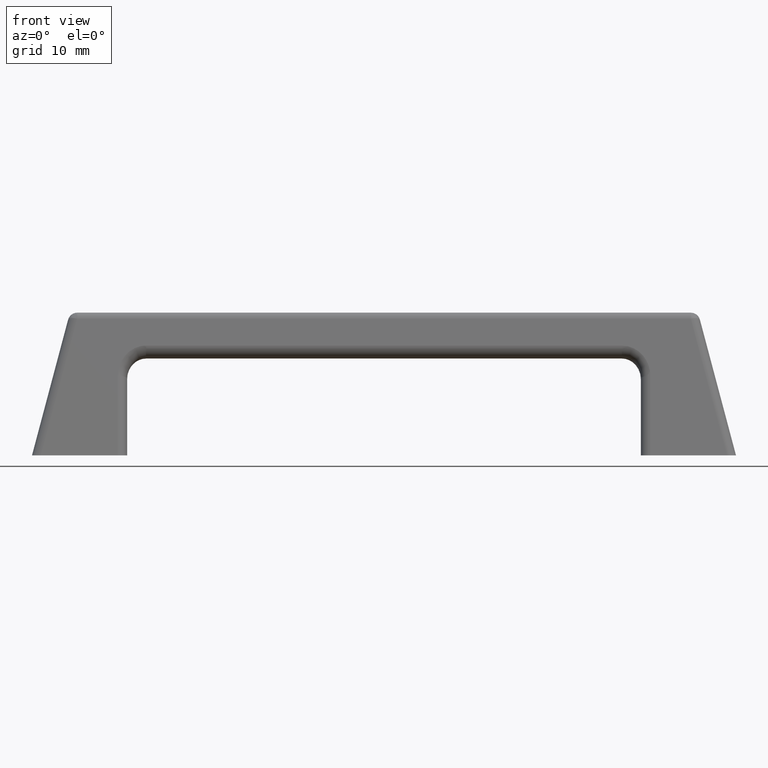
[diagram: clean part render]
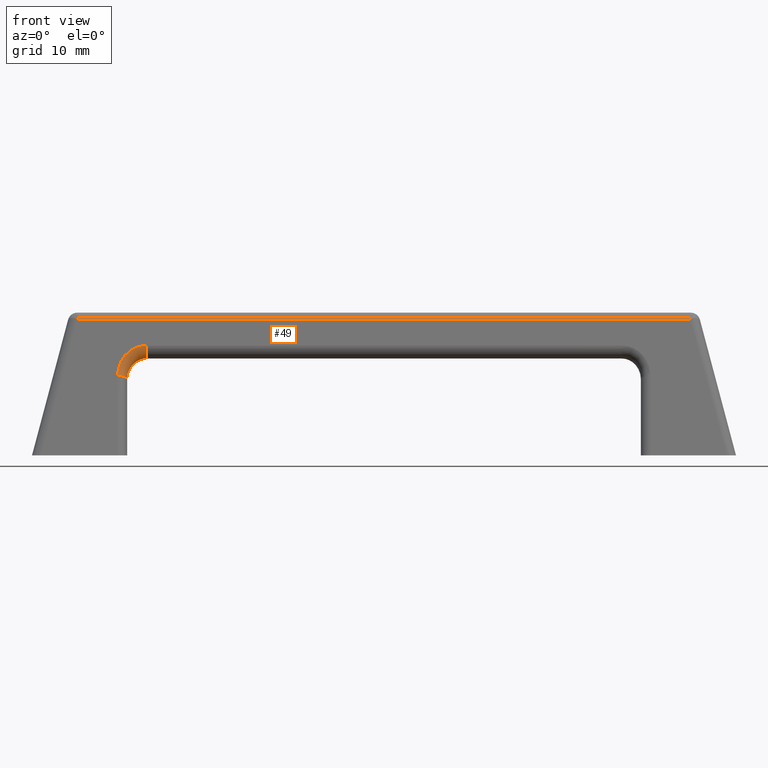
[diagram: same view with one face highlighted and labeled with its STEP entity id]
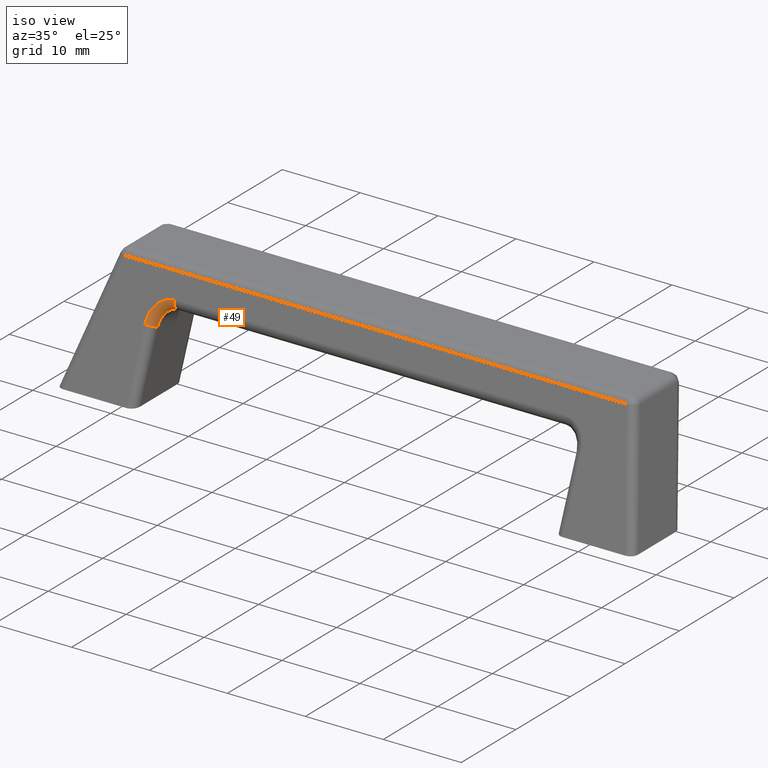
[diagram: same view with one face highlighted and labeled with its STEP entity id]
A machine part, front view. The second image highlights one B-rep face of the part: STEP entity #49.
A second angle (iso view) of the same face is appended — the face is thin or edge-on in the first view.
In plain terms, the highlighted face is a freeform B-spline surface patch.
Its self-contained STEP definition (entity closure, byte-faithful):
#49=ADVANCED_FACE('',(#171),#170,.T.);
#170=( BOUNDED_SURFACE() B_SPLINE_SURFACE( 3,3,((#794,#795,#796,#797,#798,#799,#800,#801,#802,#803,#804,#805,#806,#807,#808,#809,#810,#811,#812),(#813,#814,#815,#816,#817,#818,#819,#820,#821,#822,#823,#824,#825,#826,#827,#828,#829,#830,#831),(#832,#833,#834,#835,#836,#837,#838,#839,#840,#841,#842,#843,#844,#845,#846,#847,#848,#849,#850),(#851,#852,#853,#854,#855,#856,#857,#858,#859,#860,#861,#862,#863,#864,#865,#866,#867,#868,#869),(#870,#871,#872,#873,#874,#875,#876,#877,#878,#879,#880,#881,#882,#883,#884,#885,#886,#887,#888),(#889,#890,#891,#892,#893,#894,#895,#896,#897,#898,#899,#900,#901,#902,#903,#904,#905,#906,#907),(#908,#909,#910,#911,#912,#913,#914,#915,#916,#917,#918,#919,#920,#921,#922,#923,#924,#925,#926),(#927,#928,#929,#930,#931,#932,#933,#934,#935,#936,#937,#938,#939,#940,#941,#942,#943,#944,#945),(#946,#947,#948,#949,#950,#951,#952,#953,#954,#955,#956,#957,#958,#959,#960,#961,#962,#963,#964),(#965,#966,#967,#968,#969,#970,#971,#972,#973,#974,#975,#976,#977,#978,#979,#980,#981,#982,#983),(#984,#985,#986,#987,#988,#989,#990,#991,#992,#993,#994,#995,#996,#997,#998,#999,#1000,#1001,#1002),(#1003,#1004,#1005,#1006,#1007,#1008,#1009,#1010,#1011,#1012,#1013,#1014,#1015,#1016,#1017,#1018,#1019,#1020,#1021),(#1022,#1023,#1024,#1025,#1026,#1027,#1028,#1029,#1030,#1031,#1032,#1033,#1034,#1035,#1036,#1037,#1038,#1039,#1040)), .UNSPECIFIED.,.F.,.F.,.F.) B_SPLINE_SURFACE_WITH_KNOTS((4,3,3,3,4),(4,3,3,3,3,3,4),(0.00000000000E+00,1.33294587246E+00,2.66589174491E+00,3.99883761737E+00,5.33178348983E+00),(0.00000000000E+00,5.78926830440E-01,1.00956474288E+00,1.32989712665E+00,1.80070847255E+00,2.26015726268E+00,2.28218643309E+00), .UNSPECIFIED. ) GEOMETRIC_REPRESENTATION_ITEM() RATIONAL_B_SPLINE_SURFACE(((1.00000000000E+00,1.00000000000E+00,1.00000000000E+00,1.00000000000E+00,1.00000000000E+00,1.00000000000E+00,1.00000000000E+00,1.00000000000E+00,1.00000000000E+00,1.00000000000E+00,1.00000000000E+00,1.00000000000E+00,1.00000000000E+00,1.00000000000E+00,1.00000000000E+00,1.00000000000E+00,1.00000000000E+00,1.00000000000E+00,1.00000000000E+00),(1.00000000000E+00,1.00000000000E+00,1.00000000000E+00,1.00000000000E+00,1.00000000000E+00,1.00000000000E+00,1.00000000000E+00,1.00000000000E+00,1.00000000000E+00,1.00000000000E+00,1.00000000000E+00,1.00000000000E+00,1.00000000000E+00,1.00000000000E+00,1.00000000000E+00,1.00000000000E+00,1.00000000000E+00,1.00000000000E+00,1.00000000000E+00),(1.00000000000E+00,1.00000000000E+00,1.00000000000E+00,1.00000000000E+00,1.00000000000E+00,1.00000000000E+00,1.00000000000E+00,1.00000000000E+00,1.00000000000E+00,1.00000000000E+00,1.00000000000E+00,1.00000000000E+00,1.00000000000E+00,1.00000000000E+00,1.00000000000E+00,1.00000000000E+00,1.00000000000E+00,1.00000000000E+00,1.00000000000E+00),(1.00000000000E+00,1.00000000000E+00,1.00000000000E+00,1.00000000000E+00,1.00000000000E+00,1.00000000000E+00,1.00000000000E+00,1.00000000000E+00,1.00000000000E+00,1.00000000000E+00,1.00000000000E+00,1.00000000000E+00,1.00000000000E+00,1.00000000000E+00,1.00000000000E+00,1.00000000000E+00,1.00000000000E+00,1.00000000000E+00,1.00000000000E+00),(1.00000000000E+00,1.00000000000E+00,1.00000000000E+00,1.00000000000E+00,1.00000000000E+00,1.00000000000E+00,1.00000000000E+00,1.00000000000E+00,1.00000000000E+00,1.00000000000E+00,1.00000000000E+00,1.00000000000E+00,1.00000000000E+00,1.00000000000E+00,1.00000000000E+00,1.00000000000E+00,1.00000000000E+00,1.00000000000E+00,1.00000000000E+00),(1.00000000000E+00,1.00000000000E+00,1.00000000000E+00,1.00000000000E+00,1.00000000000E+00,1.00000000000E+00,1.00000000000E+00,1.00000000000E+00,1.00000000000E+00,1.00000000000E+00,1.00000000000E+00,1.00000000000E+00,1.00000000000E+00,1.00000000000E+00,1.00000000000E+00,1.00000000000E+00,1.00000000000E+00,1.00000000000E+00,1.00000000000E+00),(1.00000000000E+00,1.00000000000E+00,1.00000000000E+00,1.00000000000E+00,1.00000000000E+00,1.00000000000E+00,1.00000000000E+00,1.00000000000E+00,1.00000000000E+00,1.00000000000E+00,1.00000000000E+00,1.00000000000E+00,1.00000000000E+00,1.00000000000E+00,1.00000000000E+00,1.00000000000E+00,1.00000000000E+00,1.00000000000E+00,1.00000000000E+00),(1.00000000000E+00,1.00000000000E+00,1.00000000000E+00,1.00000000000E+00,1.00000000000E+00,1.00000000000E+00,1.00000000000E+00,1.00000000000E+00,1.00000000000E+00,1.00000000000E+00,1.00000000000E+00,1.00000000000E+00,1.00000000000E+00,1.00000000000E+00,1.00000000000E+00,1.00000000000E+00,1.00000000000E+00,1.00000000000E+00,1.00000000000E+00),(1.00000000000E+00,1.00000000000E+00,1.00000000000E+00,1.00000000000E+00,1.00000000000E+00,1.00000000000E+00,1.00000000000E+00,1.00000000000E+00,1.00000000000E+00,1.00000000000E+00,1.00000000000E+00,1.00000000000E+00,1.00000000000E+00,1.00000000000E+00,1.00000000000E+00,1.00000000000E+00,1.00000000000E+00,1.00000000000E+00,1.00000000000E+00),(1.00000000000E+00,1.00000000000E+00,1.00000000000E+00,1.00000000000E+00,1.00000000000E+00,1.00000000000E+00,1.00000000000E+00,1.00000000000E+00,1.00000000000E+00,1.00000000000E+00,1.00000000000E+00,1.00000000000E+00,1.00000000000E+00,1.00000000000E+00,1.00000000000E+00,1.00000000000E+00,1.00000000000E+00,1.00000000000E+00,1.00000000000E+00),(1.00000000000E+00,1.00000000000E+00,1.00000000000E+00,1.00000000000E+00,1.00000000000E+00,1.00000000000E+00,1.00000000000E+00,1.00000000000E+00,1.00000000000E+00,1.00000000000E+00,1.00000000000E+00,1.00000000000E+00,1.00000000000E+00,1.00000000000E+00,1.00000000000E+00,1.00000000000E+00,1.00000000000E+00,1.00000000000E+00,1.00000000000E+00),(1.00000000000E+00,1.00000000000E+00,1.00000000000E+00,1.00000000000E+00,1.00000000000E+00,1.00000000000E+00,1.00000000000E+00,1.00000000000E+00,1.00000000000E+00,1.00000000000E+00,1.00000000000E+00,1.00000000000E+00,1.00000000000E+00,1.00000000000E+00,1.00000000000E+00,1.00000000000E+00,1.00000000000E+00,1.00000000000E+00,1.00000000000E+00),(1.00000000000E+00,1.00000000000E+00,1.00000000000E+00,1.00000000000E+00,1.00000000000E+00,1.00000000000E+00,1.00000000000E+00,1.00000000000E+00,1.00000000000E+00,1.00000000000E+00,1.00000000000E+00,1.00000000000E+00,1.00000000000E+00,1.00000000000E+00,1.00000000000E+00,1.00000000000E+00,1.00000000000E+00,1.00000000000E+00,1.00000000000E+00))) REPRESENTATION_ITEM('') SURFACE() );
#171=FACE_OUTER_BOUND('',#1041,.T.);
#794=CARTESIAN_POINT('',(-2.70000000000E+01,4.28439923338E+00,8.01899952088E+00));
#795=CARTESIAN_POINT('',(-2.70000000000E+01,4.17228675956E+00,8.06384138988E+00));
#796=CARTESIAN_POINT('',(-2.70225898098E+01,4.05108691452E+00,8.11231795444E+00));
#797=CARTESIAN_POINT('',(-2.70738529094E+01,3.93420926391E+00,8.15906576153E+00));
#798=CARTESIAN_POINT('',(-2.71119852484E+01,3.84726917956E+00,8.19383937540E+00));
#799=CARTESIAN_POINT('',(-2.71658733164E+01,3.76307065442E+00,8.22751644188E+00));
#800=CARTESIAN_POINT('',(-2.72332994766E+01,3.68830691580E+00,8.25741985637E+00));
#801=CARTESIAN_POINT('',(-2.72834547974E+01,3.63269349691E+00,8.27966367599E+00));
#802=CARTESIAN_POINT('',(-2.73409763429E+01,3.58233293386E+00,8.29980649949E+00));
#803=CARTESIAN_POINT('',(-2.74034639000E+01,3.53920946004E+00,8.31705468872E+00));
#804=CARTESIAN_POINT('',(-2.74953055381E+01,3.47582835411E+00,8.34240536696E+00));
#805=CARTESIAN_POINT('',(-2.75977561877E+01,3.42839283795E+00,8.36137825311E+00));
#806=CARTESIAN_POINT('',(-2.77012937465E+01,3.39830354653E+00,8.37341313218E+00));
#807=CARTESIAN_POINT('',(-2.78023325311E+01,3.36894042973E+00,8.38515756161E+00));
#808=CARTESIAN_POINT('',(-2.79041720502E+01,3.35591363127E+00,8.39036791840E+00));
#809=CARTESIAN_POINT('',(-2.80000000000E+01,3.35591363127E+00,8.39036791840E+00));
#810=CARTESIAN_POINT('',(-2.80045946584E+01,3.35591363127E+00,8.39036791840E+00));
#811=CARTESIAN_POINT('',(-2.80091893168E+01,3.35591363127E+00,8.39036791840E+00));
#812=CARTESIAN_POINT('',(-2.80137839752E+01,3.35591363127E+00,8.39036791840E+00));
#813=CARTESIAN_POINT('',(-2.70000000000E+01,4.46325404960E+00,8.30135123168E+00));
#814=CARTESIAN_POINT('',(-2.69928307210E+01,4.34726595673E+00,8.34646316312E+00));
#815=CARTESIAN_POINT('',(-2.70090523915E+01,4.22092377466E+00,8.39866796105E+00));
#816=CARTESIAN_POINT('',(-2.70565290891E+01,4.09905831084E+00,8.45300961498E+00));
#817=CARTESIAN_POINT('',(-2.70918448922E+01,4.00840801415E+00,8.49343195365E+00));
#818=CARTESIAN_POINT('',(-2.71443637855E+01,3.92065424426E+00,8.53485803060E+00));
#819=CARTESIAN_POINT('',(-2.72119483805E+01,3.84336333501E+00,8.57403800894E+00));
#820=CARTESIAN_POINT('',(-2.72622215538E+01,3.78587006633E+00,8.60318225170E+00));
#821=CARTESIAN_POINT('',(-2.73206852874E+01,3.73420657538E+00,8.63105100517E+00));
#822=CARTESIAN_POINT('',(-2.73846900151E+01,3.69057182738E+00,8.65646277071E+00));
#823=CARTESIAN_POINT('',(-2.74787615282E+01,3.62643927171E+00,8.69381193720E+00));
#824=CARTESIAN_POINT('',(-2.75846583524E+01,3.58001319687E+00,8.72569593883E+00));
#825=CARTESIAN_POINT('',(-2.76916951028E+01,3.55246729420E+00,8.75037345747E+00));
#826=CARTESIAN_POINT('',(-2.77961486294E+01,3.52558618404E+00,8.77445540914E+00));
#827=CARTESIAN_POINT('',(-2.79014123498E+01,3.51644928943E+00,8.79173499276E+00));
#828=CARTESIAN_POINT('',(-2.80000000000E+01,3.52091828882E+00,8.80290826873E+00));
#829=CARTESIAN_POINT('',(-2.80047269776E+01,3.52113256373E+00,8.80344399328E+00));
#830=CARTESIAN_POINT('',(-2.80094539552E+01,3.52134683864E+00,8.80397971784E+00));
#831=CARTESIAN_POINT('',(-2.80141809328E+01,3.52156111356E+00,8.80451544240E+00));
#832=CARTESIAN_POINT('',(-2.69479453518E+01,4.64197403052E+00,8.58349008278E+00));
#833=CARTESIAN_POINT('',(-2.69330725471E+01,4.52247818775E+00,8.62736622441E+00));
#834=CARTESIAN_POINT('',(-2.69415761633E+01,4.39110154559E+00,8.68203168062E+00));
#835=CARTESIAN_POINT('',(-2.69833844647E+01,4.26414548388E+00,8.74339705443E+00));
#836=CARTESIAN_POINT('',(-2.70144838000E+01,4.16970851792E+00,8.78904402583E+00));
#837=CARTESIAN_POINT('',(-2.70639607644E+01,4.07822283628E+00,8.83817888865E+00));
#838=CARTESIAN_POINT('',(-2.71299141802E+01,3.99825993105E+00,8.88690354843E+00));
#839=CARTESIAN_POINT('',(-2.71789739919E+01,3.93877908344E+00,8.92314765506E+00));
#840=CARTESIAN_POINT('',(-2.72369827900E+01,3.88572583141E+00,8.95910382129E+00));
#841=CARTESIAN_POINT('',(-2.73010685407E+01,3.84154382980E+00,8.99309575555E+00));
#842=CARTESIAN_POINT('',(-2.73952591381E+01,3.77660694331E+00,9.04305570068E+00));
#843=CARTESIAN_POINT('',(-2.75024011753E+01,3.73125573399E+00,9.08856642824E+00));
#844=CARTESIAN_POINT('',(-2.76106811810E+01,3.70634562728E+00,9.12637184608E+00));
#845=CARTESIAN_POINT('',(-2.77163479582E+01,3.68203670081E+00,9.16326486839E+00));
#846=CARTESIAN_POINT('',(-2.78227790030E+01,3.67688912901E+00,9.19286250400E+00));
#847=CARTESIAN_POINT('',(-2.79219180278E+01,3.68579855243E+00,9.21513761256E+00));
#848=CARTESIAN_POINT('',(-2.79266714421E+01,3.68622573215E+00,9.21620563618E+00));
#849=CARTESIAN_POINT('',(-2.79314248565E+01,3.68665291188E+00,9.21727365981E+00));
#850=CARTESIAN_POINT('',(-2.79361782708E+01,3.68708009160E+00,9.21834168343E+00));
#851=CARTESIAN_POINT('',(-2.68477590650E+01,4.80718454676E+00,8.84430202449E+00));
#852=CARTESIAN_POINT('',(-2.68263616822E+01,4.68407224388E+00,8.88383567251E+00));
#853=CARTESIAN_POINT('',(-2.68274198425E+01,4.54747603491E+00,8.93770594955E+00));
#854=CARTESIAN_POINT('',(-2.68626659143E+01,4.41521532582E+00,9.00367514294E+00));
#855=CARTESIAN_POINT('',(-2.68888838990E+01,4.31683246867E+00,9.05274669090E+00));
#856=CARTESIAN_POINT('',(-2.69340274773E+01,4.22145449774E+00,9.10827925240E+00));
#857=CARTESIAN_POINT('',(-2.69965829920E+01,4.13877487423E+00,9.16586948188E+00));
#858=CARTESIAN_POINT('',(-2.70431152562E+01,4.07727318075E+00,9.20870829138E+00));
#859=CARTESIAN_POINT('',(-2.70990976793E+01,4.02286423825E+00,9.25258529885E+00));
#860=CARTESIAN_POINT('',(-2.71615381353E+01,3.97824933258E+00,9.29523627129E+00));
#861=CARTESIAN_POINT('',(-2.72533105461E+01,3.91267618154E+00,9.35792291416E+00));
#862=CARTESIAN_POINT('',(-2.73588288864E+01,3.86874637035E+00,9.41768822239E+00));
#863=CARTESIAN_POINT('',(-2.74654993710E+01,3.84683646917E+00,9.46930313806E+00));
#864=CARTESIAN_POINT('',(-2.75695954713E+01,3.82545534129E+00,9.51967237993E+00));
#865=CARTESIAN_POINT('',(-2.76744333020E+01,3.82465008597E+00,9.56229060290E+00));
#866=CARTESIAN_POINT('',(-2.77716385975E+01,3.83821549725E+00,9.59620649113E+00));
#867=CARTESIAN_POINT('',(-2.77762992955E+01,3.83886591741E+00,9.59783265469E+00));
#868=CARTESIAN_POINT('',(-2.77809599934E+01,3.83951633758E+00,9.59945881825E+00));
#869=CARTESIAN_POINT('',(-2.77856206913E+01,3.84016675774E+00,9.60108498181E+00));
#870=CARTESIAN_POINT('',(-2.67475727782E+01,4.97239506300E+00,9.10511396619E+00));
#871=CARTESIAN_POINT('',(-2.67196508174E+01,4.84566630001E+00,9.14030512061E+00));
#872=CARTESIAN_POINT('',(-2.67132635216E+01,4.70385052423E+00,9.19338021848E+00));
#873=CARTESIAN_POINT('',(-2.67419473638E+01,4.56628516776E+00,9.26395323145E+00));
#874=CARTESIAN_POINT('',(-2.67632839979E+01,4.46395641943E+00,9.31644935597E+00));
#875=CARTESIAN_POINT('',(-2.68040941902E+01,4.36468615919E+00,9.37837961614E+00));
#876=CARTESIAN_POINT('',(-2.68632518037E+01,4.27928981740E+00,9.44483541533E+00));
#877=CARTESIAN_POINT('',(-2.69072565205E+01,4.21576727807E+00,9.49426892770E+00));
#878=CARTESIAN_POINT('',(-2.69612125687E+01,4.16000264510E+00,9.54606677640E+00));
#879=CARTESIAN_POINT('',(-2.70220077298E+01,4.11495483537E+00,9.59737678703E+00));
#880=CARTESIAN_POINT('',(-2.71113619541E+01,4.04874541977E+00,9.67279012763E+00));
#881=CARTESIAN_POINT('',(-2.72152565975E+01,4.00623700671E+00,9.74681001654E+00));
#882=CARTESIAN_POINT('',(-2.73203175610E+01,3.98732731105E+00,9.81223443004E+00));
#883=CARTESIAN_POINT('',(-2.74228429844E+01,3.96887398178E+00,9.87607989147E+00));
#884=CARTESIAN_POINT('',(-2.75260876010E+01,3.97241104293E+00,9.93171870180E+00));
#885=CARTESIAN_POINT('',(-2.76213591673E+01,3.99063244207E+00,9.97727536970E+00));
#886=CARTESIAN_POINT('',(-2.76259271488E+01,3.99150610267E+00,9.97945967320E+00));
#887=CARTESIAN_POINT('',(-2.76304951303E+01,3.99237976328E+00,9.98164397670E+00));
#888=CARTESIAN_POINT('',(-2.76350631118E+01,3.99325342388E+00,9.98382828020E+00));
#889=CARTESIAN_POINT('',(-2.65993336818E+01,5.12393388057E+00,9.34434288547E+00));
#890=CARTESIAN_POINT('',(-2.65666143759E+01,4.99375648758E+00,9.37277379352E+00));
#891=CARTESIAN_POINT('',(-2.65535688129E+01,4.84678763501E+00,9.42239452828E+00));
#892=CARTESIAN_POINT('',(-2.65751471683E+01,4.70387625729E+00,9.49555364356E+00));
#893=CARTESIAN_POINT('',(-2.65911983468E+01,4.59757084160E+00,9.54997345453E+00));
#894=CARTESIAN_POINT('',(-2.66265521156E+01,4.49433204278E+00,9.61718260600E+00));
#895=CARTESIAN_POINT('',(-2.66805972858E+01,4.40620392340E+00,9.69188889812E+00));
#896=CARTESIAN_POINT('',(-2.67207990833E+01,4.34064933624E+00,9.74745958511E+00));
#897=CARTESIAN_POINT('',(-2.67711327013E+01,4.28355542326E+00,9.80698857591E+00));
#898=CARTESIAN_POINT('',(-2.68284732845E+01,4.23815276120E+00,9.86694245336E+00));
#899=CARTESIAN_POINT('',(-2.69127501122E+01,4.17142179827E+00,9.95506019345E+00));
#900=CARTESIAN_POINT('',(-2.70119035521E+01,4.13056553983E+00,1.00436686706E+01));
#901=CARTESIAN_POINT('',(-2.71121796605E+01,4.11485866888E+00,1.01231754645E+01));
#902=CARTESIAN_POINT('',(-2.72100357064E+01,4.09953086738E+00,1.02007634424E+01));
#903=CARTESIAN_POINT('',(-2.73085442307E+01,4.10756216052E+00,1.02696200085E+01));
#904=CARTESIAN_POINT('',(-2.73990005227E+01,4.13043639718E+00,1.03268095796E+01));
#905=CARTESIAN_POINT('',(-2.74033376264E+01,4.13153314717E+00,1.03295516454E+01));
#906=CARTESIAN_POINT('',(-2.74076747302E+01,4.13262989716E+00,1.03322937112E+01));
#907=CARTESIAN_POINT('',(-2.74120118339E+01,4.13372664715E+00,1.03350357770E+01));
#908=CARTESIAN_POINT('',(-2.64142135624E+01,5.25038053524E+00,9.54395970331E+00));
#909=CARTESIAN_POINT('',(-2.63803792714E+01,5.11684771539E+00,9.56407254046E+00));
#910=CARTESIAN_POINT('',(-2.63637958359E+01,4.96494820100E+00,9.60799214954E+00));
#911=CARTESIAN_POINT('',(-2.63795336118E+01,4.81695771191E+00,9.68141762254E+00));
#912=CARTESIAN_POINT('',(-2.63912402431E+01,4.70687417125E+00,9.73603556517E+00));
#913=CARTESIAN_POINT('',(-2.64210279874E+01,4.59989073953E+00,9.80679980887E+00));
#914=CARTESIAN_POINT('',(-2.64687087886E+01,4.50926067636E+00,9.88830790096E+00));
#915=CARTESIAN_POINT('',(-2.65041764152E+01,4.44184500454E+00,9.94893814434E+00));
#916=CARTESIAN_POINT('',(-2.65493395853E+01,4.38359712324E+00,1.00152692775E+01));
#917=CARTESIAN_POINT('',(-2.66012410342E+01,4.33799748314E+00,1.00830894042E+01));
#918=CARTESIAN_POINT('',(-2.66775236464E+01,4.27097700998E+00,1.01827686335E+01));
#919=CARTESIAN_POINT('',(-2.67680962348E+01,4.23196190364E+00,1.02851398691E+01));
#920=CARTESIAN_POINT('',(-2.68596926138E+01,4.21950503961E+00,1.03780304925E+01));
#921=CARTESIAN_POINT('',(-2.69490784068E+01,4.20734880941E+00,1.04686792945E+01));
#922=CARTESIAN_POINT('',(-2.70390282037E+01,4.21977938358E+00,1.05501825890E+01));
#923=CARTESIAN_POINT('',(-2.71213203436E+01,4.24709127621E+00,1.06184670721E+01));
#924=CARTESIAN_POINT('',(-2.71252660011E+01,4.24840079830E+00,1.06217411051E+01));
#925=CARTESIAN_POINT('',(-2.71292116586E+01,4.24971032038E+00,1.06250151382E+01));
#926=CARTESIAN_POINT('',(-2.71331573161E+01,4.25101984246E+00,1.06282891712E+01));
#927=CARTESIAN_POINT('',(-2.62290934430E+01,5.37682718991E+00,9.74357652116E+00));
#928=CARTESIAN_POINT('',(-2.61941441668E+01,5.23993894321E+00,9.75537128741E+00));
#929=CARTESIAN_POINT('',(-2.61740228589E+01,5.08310876698E+00,9.79358977080E+00));
#930=CARTESIAN_POINT('',(-2.61839200553E+01,4.93003916653E+00,9.86728160151E+00));
#931=CARTESIAN_POINT('',(-2.61912821394E+01,4.81617750089E+00,9.92209767580E+00));
#932=CARTESIAN_POINT('',(-2.62155038592E+01,4.70544943628E+00,9.99641701174E+00));
#933=CARTESIAN_POINT('',(-2.62568202913E+01,4.61231742933E+00,1.00847269038E+01));
#934=CARTESIAN_POINT('',(-2.62875537470E+01,4.54304067284E+00,1.01504167036E+01));
#935=CARTESIAN_POINT('',(-2.63275464693E+01,4.48363882322E+00,1.02235499792E+01));
#936=CARTESIAN_POINT('',(-2.63740087839E+01,4.43784220507E+00,1.02992363551E+01));
#937=CARTESIAN_POINT('',(-2.64422971807E+01,4.37053222170E+00,1.04104770735E+01));
#938=CARTESIAN_POINT('',(-2.65242889175E+01,4.33335826744E+00,1.05266110676E+01));
#939=CARTESIAN_POINT('',(-2.66072055671E+01,4.32415141035E+00,1.06328855204E+01));
#940=CARTESIAN_POINT('',(-2.66881211071E+01,4.31516675143E+00,1.07365951467E+01));
#941=CARTESIAN_POINT('',(-2.67695121767E+01,4.33199660665E+00,1.08307451695E+01));
#942=CARTESIAN_POINT('',(-2.68436401644E+01,4.36374615525E+00,1.09101245646E+01));
#943=CARTESIAN_POINT('',(-2.68471943757E+01,4.36526844943E+00,1.09139305648E+01));
#944=CARTESIAN_POINT('',(-2.68507485870E+01,4.36679074360E+00,1.09177365651E+01));
#945=CARTESIAN_POINT('',(-2.68543027983E+01,4.36831303777E+00,1.09215425654E+01));
#946=CARTESIAN_POINT('',(-2.60072379564E+01,5.47808219088E+00,9.90342417498E+00));
#947=CARTESIAN_POINT('',(-2.59747046716E+01,5.33826808040E+00,9.90626980401E+00));
#948=CARTESIAN_POINT('',(-2.59540632763E+01,5.17705975252E+00,9.93742447818E+00));
#949=CARTESIAN_POINT('',(-2.59593214592E+01,5.01942057875E+00,1.00096730540E+01));
#950=CARTESIAN_POINT('',(-2.59632327875E+01,4.90215981082E+00,1.00634155552E+01));
#951=CARTESIAN_POINT('',(-2.59817498809E+01,4.78804038636E+00,1.01398640242E+01));
#952=CARTESIAN_POINT('',(-2.60154331066E+01,4.69268638948E+00,1.02336170972E+01));
#953=CARTESIAN_POINT('',(-2.60404885596E+01,4.62175679355E+00,1.03033558370E+01));
#954=CARTESIAN_POINT('',(-2.60737574061E+01,4.56136992724E+00,1.03823156574E+01));
#955=CARTESIAN_POINT('',(-2.61128033212E+01,4.51548397662E+00,1.04649382919E+01));
#956=CARTESIAN_POINT('',(-2.61701913993E+01,4.44804269606E+00,1.05863736375E+01));
#957=CARTESIAN_POINT('',(-2.62398035628E+01,4.41272912843E+00,1.07149908715E+01));
#958=CARTESIAN_POINT('',(-2.63102309170E+01,4.40659271000E+00,1.08333695114E+01));
#959=CARTESIAN_POINT('',(-2.63789585783E+01,4.40060438782E+00,1.09488912025E+01));
#960=CARTESIAN_POINT('',(-2.64480934476E+01,4.42146613130E+00,1.10544345464E+01));
#961=CARTESIAN_POINT('',(-2.65108569347E+01,4.45716017178E+00,1.11436758575E+01));
#962=CARTESIAN_POINT('',(-2.65138662527E+01,4.45887159233E+00,1.11479547066E+01));
#963=CARTESIAN_POINT('',(-2.65168755708E+01,4.46058301287E+00,1.11522335557E+01));
#964=CARTESIAN_POINT('',(-2.65198848889E+01,4.46229443342E+00,1.11565124048E+01));
#965=CARTESIAN_POINT('',(-2.57653668647E+01,5.54651462716E+00,1.00114560182E+01));
#966=CARTESIAN_POINT('',(-2.57392202094E+01,5.40450725186E+00,1.00073241119E+01));
#967=CARTESIAN_POINT('',(-2.57219936048E+01,5.24007241036E+00,1.00326713008E+01));
#968=CARTESIAN_POINT('',(-2.57249298767E+01,5.07909557881E+00,1.01032058149E+01));
#969=CARTESIAN_POINT('',(-2.57271140387E+01,4.95935207575E+00,1.01556733019E+01));
#970=CARTESIAN_POINT('',(-2.57406921893E+01,4.84277264831E+00,1.02331968241E+01));
#971=CARTESIAN_POINT('',(-2.57662329697E+01,4.74583650965E+00,1.03305628369E+01));
#972=CARTESIAN_POINT('',(-2.57852316198E+01,4.67373002884E+00,1.04029890820E+01));
#973=CARTESIAN_POINT('',(-2.58107080756E+01,4.61266761090E+00,1.04859988525E+01));
#974=CARTESIAN_POINT('',(-2.58407501658E+01,4.56676790079E+00,1.05735456900E+01));
#975=CARTESIAN_POINT('',(-2.58849047929E+01,4.49930639708E+00,1.07022184264E+01));
#976=CARTESIAN_POINT('',(-2.59387139701E+01,4.46544176192E+00,1.08398779214E+01));
#977=CARTESIAN_POINT('',(-2.59931404583E+01,4.46161123183E+00,1.09670678650E+01));
#978=CARTESIAN_POINT('',(-2.60462534183E+01,4.45787314770E+00,1.10911882078E+01));
#979=CARTESIAN_POINT('',(-2.60996598544E+01,4.48171362595E+00,1.12050637645E+01));
#980=CARTESIAN_POINT('',(-2.61480502971E+01,4.52029333728E+00,1.13015197547E+01));
#981=CARTESIAN_POINT('',(-2.61503704715E+01,4.52214311696E+00,1.13061445257E+01));
#982=CARTESIAN_POINT('',(-2.61526906458E+01,4.52399289664E+00,1.13107692967E+01));
#983=CARTESIAN_POINT('',(-2.61550108202E+01,4.52584267631E+00,1.13153940677E+01));
#984=CARTESIAN_POINT('',(-2.55234957730E+01,5.61494706344E+00,1.01194878613E+01));
#985=CARTESIAN_POINT('',(-2.55037357472E+01,5.47074642333E+00,1.01083784198E+01));
#986=CARTESIAN_POINT('',(-2.54899239332E+01,5.30308506820E+00,1.01279181234E+01));
#987=CARTESIAN_POINT('',(-2.54905382942E+01,5.13877057887E+00,1.01967385759E+01));
#988=CARTESIAN_POINT('',(-2.54909952899E+01,5.01654434068E+00,1.02479310486E+01));
#989=CARTESIAN_POINT('',(-2.54996344978E+01,4.89750491027E+00,1.03265296240E+01));
#990=CARTESIAN_POINT('',(-2.55170328327E+01,4.79898662983E+00,1.04275085767E+01));
#991=CARTESIAN_POINT('',(-2.55299746801E+01,4.72570326413E+00,1.05026223270E+01));
#992=CARTESIAN_POINT('',(-2.55476587450E+01,4.66396529456E+00,1.05896820475E+01));
#993=CARTESIAN_POINT('',(-2.55686970104E+01,4.61805182495E+00,1.06821530881E+01));
#994=CARTESIAN_POINT('',(-2.55996181865E+01,4.55057009811E+00,1.08180632154E+01));
#995=CARTESIAN_POINT('',(-2.56376243773E+01,4.51815439541E+00,1.09647649714E+01));
#996=CARTESIAN_POINT('',(-2.56760499996E+01,4.51662975365E+00,1.11007662186E+01));
#997=CARTESIAN_POINT('',(-2.57135482584E+01,4.51514190758E+00,1.12334852132E+01));
#998=CARTESIAN_POINT('',(-2.57512262612E+01,4.54196112060E+00,1.13556929826E+01));
#999=CARTESIAN_POINT('',(-2.57852436595E+01,4.58342650278E+00,1.14593636520E+01));
#1000=CARTESIAN_POINT('',(-2.57868746902E+01,4.58541464159E+00,1.14643343449E+01));
#1001=CARTESIAN_POINT('',(-2.57885057209E+01,4.58740278040E+00,1.14693050378E+01));
#1002=CARTESIAN_POINT('',(-2.57901367515E+01,4.58939091920E+00,1.14742757307E+01));
#1003=CARTESIAN_POINT('',(-2.52618465863E+01,5.65050309147E+00,1.01756188930E+01));
#1004=CARTESIAN_POINT('',(-2.52515989259E+01,5.50506514203E+00,1.01601464317E+01));
#1005=CARTESIAN_POINT('',(-2.52443108587E+01,5.33556457606E+00,1.01758207568E+01));
#1006=CARTESIAN_POINT('',(-2.52443390136E+01,5.16933191808E+00,1.02431565464E+01));
#1007=CARTESIAN_POINT('',(-2.52443599568E+01,5.04567883958E+00,1.02932446444E+01));
#1008=CARTESIAN_POINT('',(-2.52485345057E+01,4.92522006416E+00,1.03721217980E+01));
#1009=CARTESIAN_POINT('',(-2.52571904069E+01,4.82580383782E+00,1.04749539229E+01));
#1010=CARTESIAN_POINT('',(-2.52636291467E+01,4.75185253012E+00,1.05514461656E+01));
#1011=CARTESIAN_POINT('',(-2.52724947144E+01,4.68974513285E+00,1.06407297623E+01));
#1012=CARTESIAN_POINT('',(-2.52830879368E+01,4.64385288669E+00,1.07359754550E+01));
#1013=CARTESIAN_POINT('',(-2.52986574188E+01,4.57640235319E+00,1.08759636519E+01));
#1014=CARTESIAN_POINT('',(-2.53178777796E+01,4.54488365717E+00,1.10278778434E+01));
#1015=CARTESIAN_POINT('',(-2.53373502474E+01,4.54472711007E+00,1.11689483611E+01));
#1016=CARTESIAN_POINT('',(-2.53563527670E+01,4.54457434107E+00,1.13066142845E+01));
#1017=CARTESIAN_POINT('',(-2.53754819570E+01,4.57312292194E+00,1.14336029073E+01));
#1018=CARTESIAN_POINT('',(-2.53927698794E+01,4.61622914323E+00,1.15413759599E+01));
#1019=CARTESIAN_POINT('',(-2.53935987827E+01,4.61829595528E+00,1.15465433496E+01));
#1020=CARTESIAN_POINT('',(-2.53944276859E+01,4.62036276733E+00,1.15517107393E+01));
#1021=CARTESIAN_POINT('',(-2.53952565891E+01,4.62242957937E+00,1.15568781289E+01));
#1022=CARTESIAN_POINT('',(-2.50000000000E+01,5.65050309147E+00,1.01756188930E+01));
#1023=CARTESIAN_POINT('',(-2.50000000000E+01,5.50504928493E+00,1.01601447448E+01));
#1024=CARTESIAN_POINT('',(-2.50000000000E+01,5.33553770358E+00,1.01758178483E+01));
#1025=CARTESIAN_POINT('',(-2.50000000000E+01,5.16930117705E+00,1.02431501554E+01));
#1026=CARTESIAN_POINT('',(-2.50000000000E+01,5.04564522090E+00,1.02932356631E+01));
#1027=CARTESIAN_POINT('',(-2.50000000000E+01,4.92518732482E+00,1.03721088223E+01));
#1028=CARTESIAN_POINT('',(-2.50000000000E+01,4.82577364455E+00,1.04749365634E+01));
#1029=CARTESIAN_POINT('',(-2.50000000000E+01,4.75182423077E+00,1.05514255451E+01));
#1030=CARTESIAN_POINT('',(-2.50000000000E+01,4.68971954255E+00,1.06407057790E+01));
#1031=CARTESIAN_POINT('',(-2.50000000000E+01,4.64382996247E+00,1.07359492621E+01));
#1032=CARTESIAN_POINT('',(-2.50000000000E+01,4.57638334748E+00,1.08759342113E+01));
#1033=CARTESIAN_POINT('',(-2.50000000000E+01,4.54486832380E+00,1.10278480114E+01));
#1034=CARTESIAN_POINT('',(-2.50000000000E+01,4.54471533337E+00,1.11689231020E+01));
#1035=CARTESIAN_POINT('',(-2.50000000000E+01,4.54456603520E+00,1.13065934879E+01));
#1036=CARTESIAN_POINT('',(-2.50000000000E+01,4.57311822207E+00,1.14335911568E+01));
#1037=CARTESIAN_POINT('',(-2.50000000000E+01,4.61622914323E+00,1.15413759599E+01));
#1038=CARTESIAN_POINT('',(-2.50000000000E+01,4.61829618062E+00,1.15465439130E+01));
#1039=CARTESIAN_POINT('',(-2.50000000000E+01,4.62036321802E+00,1.15517118661E+01));
#1040=CARTESIAN_POINT('',(-2.50000000000E+01,4.62243025541E+00,1.15568798191E+01));
#1041=EDGE_LOOP('',(#1307,#1308,#1309,#1310));
#1307=ORIENTED_EDGE('',*,*,#1485,.T.);
#1308=ORIENTED_EDGE('',*,*,#1486,.F.);
#1309=ORIENTED_EDGE('',*,*,#1482,.F.);
#1310=ORIENTED_EDGE('',*,*,#1487,.F.);
#1482=EDGE_CURVE('',#1713,#1714,#1715,.T.);
#1485=EDGE_CURVE('',#1733,#1734,#1735,.T.);
#1486=EDGE_CURVE('',#1714,#1734,#1741,.T.);
#1487=EDGE_CURVE('',#1733,#1713,#1747,.T.);
#1713=VERTEX_POINT('',#2260);
#1714=VERTEX_POINT('',#2261);
#1715=CIRCLE('',#2265,1.00000000000E+00);
#1733=VERTEX_POINT('',#2272);
#1734=VERTEX_POINT('',#2273);
#1735=CIRCLE('',#2277,1.00000000000E+00);
#1741=(BOUNDED_CURVE() B_SPLINE_CURVE(2,(#2278,#2279,#2280,#2281,#2282),.UNSPECIFIED.,.F.,.F.) B_SPLINE_CURVE_WITH_KNOTS((3,2,3),(0.00000000000E+00,5.00000000000E-01,1.00000000000E+00),.UNSPECIFIED.) CURVE() GEOMETRIC_REPRESENTATION_ITEM() RATIONAL_B_SPLINE_CURVE((1.00000000000E+00,9.23879525674E-01,1.00000000000E+00,9.23879525674E-01,1.00000000000E+00)) REPRESENTATION_ITEM('') );
#1747=(BOUNDED_CURVE() B_SPLINE_CURVE(2,(#2283,#2284,#2285),.UNSPECIFIED.,.F.,.F.) B_SPLINE_CURVE_WITH_KNOTS((3,3),(0.00000000000E+00,1.00000000000E+00),.UNSPECIFIED.) CURVE() GEOMETRIC_REPRESENTATION_ITEM() RATIONAL_B_SPLINE_CURVE((1.00000000000E+00,7.07106794413E-01,1.00000000000E+00)) REPRESENTATION_ITEM('') );
#2260=CARTESIAN_POINT('',(-2.50000000000E+01,4.61622914323E+00,1.15413759599E+01));
#2261=CARTESIAN_POINT('',(-2.50000000000E+01,5.65050309147E+00,1.01756188930E+01));
#2262=CARTESIAN_POINT('',(-2.50000000000E+01,5.54471474534E+00,1.11700075624E+01));
#2263=DIRECTION('',(1.00000000000E+00,-1.00573717107E-15,-2.51451789936E-15));
#2264=DIRECTION('',(-0.00000000000E+00,9.28485602105E-01,-3.71368397530E-01));
#2265=AXIS2_PLACEMENT_3D('',#2262,#2263,#2264);
#2272=CARTESIAN_POINT('',(-2.80000000000E+01,3.35591363127E+00,8.39036791840E+00));
#2273=CARTESIAN_POINT('',(-2.70000000000E+01,4.28439923338E+00,8.01899952088E+00));
#2274=CARTESIAN_POINT('',(-2.80000000000E+01,4.28439923338E+00,8.01899952088E+00));
#2275=DIRECTION('',(-6.99739840816E-16,3.71368397530E-01,9.28485602105E-01));
#2276=DIRECTION('',(-1.42108547152E-14,9.28485602105E-01,-3.71368397530E-01));
#2277=AXIS2_PLACEMENT_3D('',#2274,#2275,#2276);
#2278=CARTESIAN_POINT('',(-2.50000000000E+01,5.65050309147E+00,1.01756188930E+01));
#2279=CARTESIAN_POINT('',(-2.58284270237E+01,5.65050313191E+00,1.01756189568E+01));
#2280=CARTESIAN_POINT('',(-2.64142135118E+01,5.25038056976E+00,9.54395975780E+00));
#2281=CARTESIAN_POINT('',(-2.70000000000E+01,4.85025800760E+00,8.91230055881E+00));
#2282=CARTESIAN_POINT('',(-2.70000000000E+01,4.28439923338E+00,8.01899952088E+00));
#2283=CARTESIAN_POINT('',(-2.80000000000E+01,3.35591363127E+00,8.39036791840E+00));
#2284=CARTESIAN_POINT('',(-2.80000000774E+01,4.61622906356E+00,1.15413757607E+01));
#2285=CARTESIAN_POINT('',(-2.50000000000E+01,4.61622914323E+00,1.15413759599E+01));